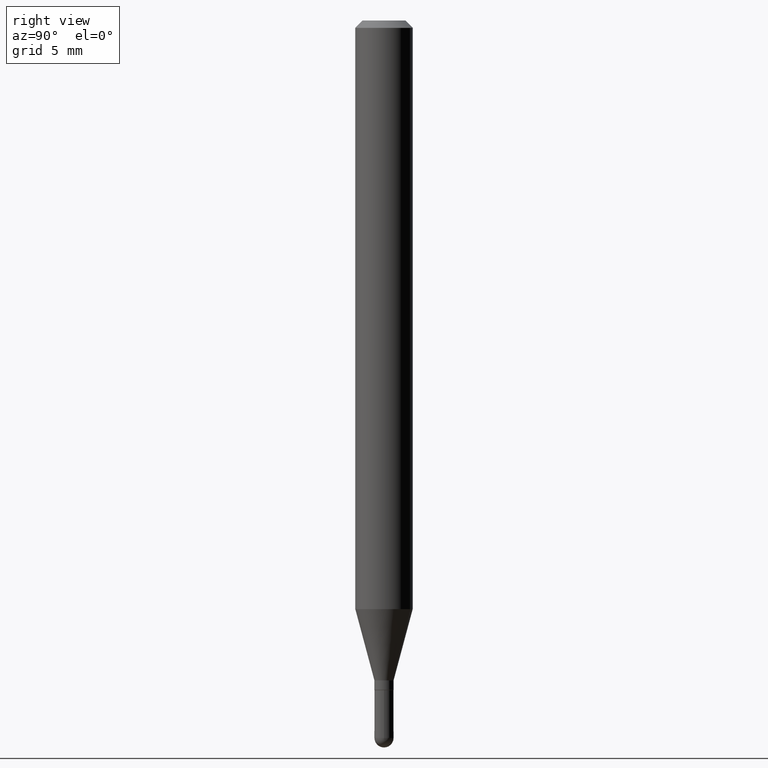
[diagram: clean part render]
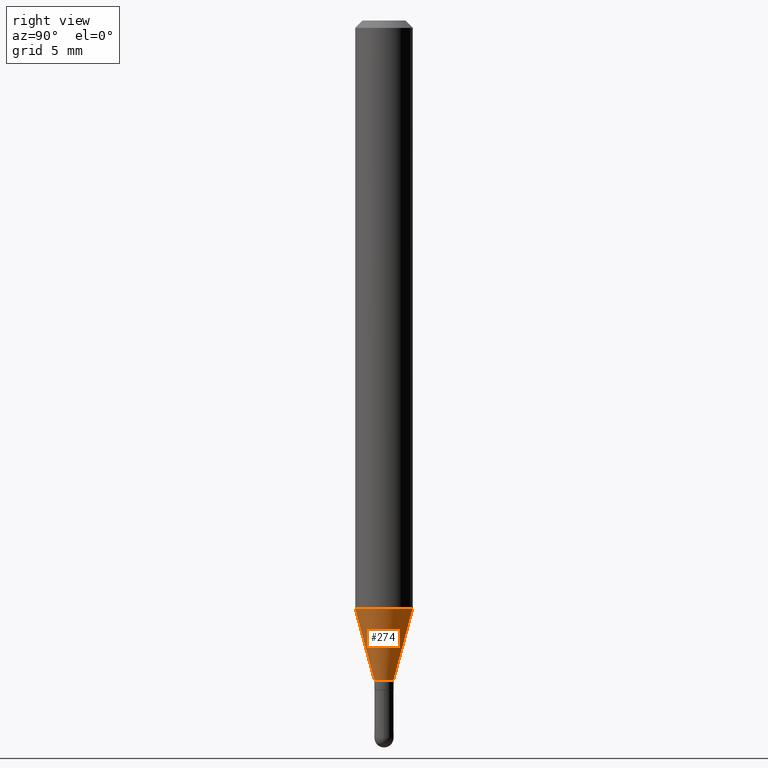
[diagram: same view with one face highlighted and labeled with its STEP entity id]
A machine part, right view. The second image highlights one B-rep face of the part: STEP entity #274.
In plain terms, the highlighted conical surface has half-angle 15 deg.
Its self-contained STEP definition (entity closure, byte-faithful):
#8 = VERTEX_POINT ( 'NONE', #322 ) ;
#17 = CARTESIAN_POINT ( 'NONE',  ( 3.321403358547062397E-29, -4.741476962661159590E-15, -1.358099999999999641 ) ) ;
#57 = EDGE_LOOP ( 'NONE', ( #460, #352, #144, #387 ) ) ;
#133 = DIRECTION ( 'NONE',  ( -2.445625033905502397E-29, 3.491257611855651995E-15, 1.000000000000000000 ) ) ;
#143 = DIRECTION ( 'NONE',  ( -2.445625033905502397E-29, 3.491257611855651995E-15, 1.000000000000000000 ) ) ;
#144 = ORIENTED_EDGE ( 'NONE', *, *, #468, .F. ) ;
#145 = CARTESIAN_POINT ( 'NONE',  ( 2.962248161208970335E-29, -4.228764139084222964E-15, -1.211243800722163311 ) ) ;
#159 = CARTESIAN_POINT ( 'NONE',  ( -4.123439461173446476E-16, -0.05905000000000424493, -1.211243800722163089 ) ) ;
#206 = EDGE_CURVE ( 'NONE', #507, #495, #207, .T. ) ;
#207 = LINE ( 'NONE', #413, #291 ) ;
#210 = EDGE_CURVE ( 'NONE', #8, #501, #484, .T. ) ;
#214 = CARTESIAN_POINT ( 'NONE',  ( -1.375643647503837403E-16, -0.01970000000000438414, -1.358099999999999641 ) ) ;
#235 = AXIS2_PLACEMENT_3D ( 'NONE', #145, #143, #302 ) ;
#267 = DIRECTION ( 'NONE',  ( -2.445625033905502397E-29, 3.491257611855651995E-15, 1.000000000000000000 ) ) ;
#271 = VECTOR ( 'NONE', #376, 39.37007874015748854 ) ;
#274 = ADVANCED_FACE ( 'NONE', ( #298 ), #408, .T. ) ;
#285 = CIRCLE ( 'NONE', #235, 0.05904999999999999832 ) ;
#290 = DIRECTION ( 'NONE',  ( 1.839019923739598738E-15, 0.2588190451025247363, 0.9659258262890673130 ) ) ;
#291 = VECTOR ( 'NONE', #290, 39.37007874015748854 ) ;
#298 = FACE_OUTER_BOUND ( 'NONE', #57, .T. ) ;
#302 = DIRECTION ( 'NONE',  ( -6.982962677686265922E-15, -1.000000000000000000, 4.626330217890369336E-15 ) ) ;
#322 = CARTESIAN_POINT ( 'NONE',  ( -1.375643647503837403E-16, -0.01970000000000438414, -1.358099999999999641 ) ) ;
#328 = AXIS2_PLACEMENT_3D ( 'NONE', #453, #133, #331 ) ;
#331 = DIRECTION ( 'NONE',  ( -6.982962677686266711E-15, -1.000000000000000000, 0.000000000000000000 ) ) ;
#352 = ORIENTED_EDGE ( 'NONE', *, *, #206, .T. ) ;
#376 = DIRECTION ( 'NONE',  ( -1.807323732225328562E-15, -0.2588190451025179639, 0.9659258262890690894 ) ) ;
#387 = ORIENTED_EDGE ( 'NONE', *, *, #210, .F. ) ;
#388 = DIRECTION ( 'NONE',  ( -6.982962677686266711E-15, -1.000000000000000000, 0.000000000000000000 ) ) ;
#393 = CARTESIAN_POINT ( 'NONE',  ( 2.797762022055696241E-16, 0.01969999999999490214, -1.358099999999999641 ) ) ;
#408 = CONICAL_SURFACE ( 'NONE', #328, 0.01969999999999964488, 0.2617993877991500740 ) ;
#413 = CARTESIAN_POINT ( 'NONE',  ( 1.399769189447703701E-16, 0.01969999999999490214, -1.358099999999999641 ) ) ;
#425 = EDGE_CURVE ( 'NONE', #8, #507, #512, .T. ) ;
#453 = CARTESIAN_POINT ( 'NONE',  ( 3.321403358547062397E-29, -4.741476962661159590E-15, -1.358099999999999641 ) ) ;
#460 = ORIENTED_EDGE ( 'NONE', *, *, #425, .T. ) ;
#464 = AXIS2_PLACEMENT_3D ( 'NONE', #17, #267, #388 ) ;
#468 = EDGE_CURVE ( 'NONE', #501, #495, #285, .T. ) ;
#473 = CARTESIAN_POINT ( 'NONE',  ( 4.195754854663685822E-16, 0.05904999999999575866, -1.211243800722163533 ) ) ;
#484 = LINE ( 'NONE', #214, #271 ) ;
#495 = VERTEX_POINT ( 'NONE', #473 ) ;
#501 = VERTEX_POINT ( 'NONE', #159 ) ;
#507 = VERTEX_POINT ( 'NONE', #393 ) ;
#512 = CIRCLE ( 'NONE', #464, 0.01969999999999964488 ) ;